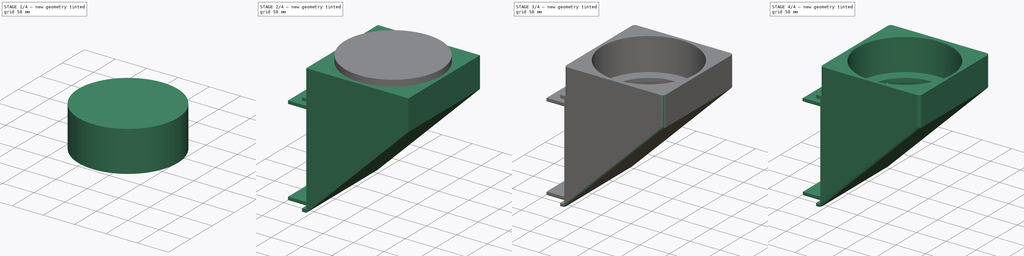
[diagram: build sequence overview — one tinted view per stage of 4, left to right]
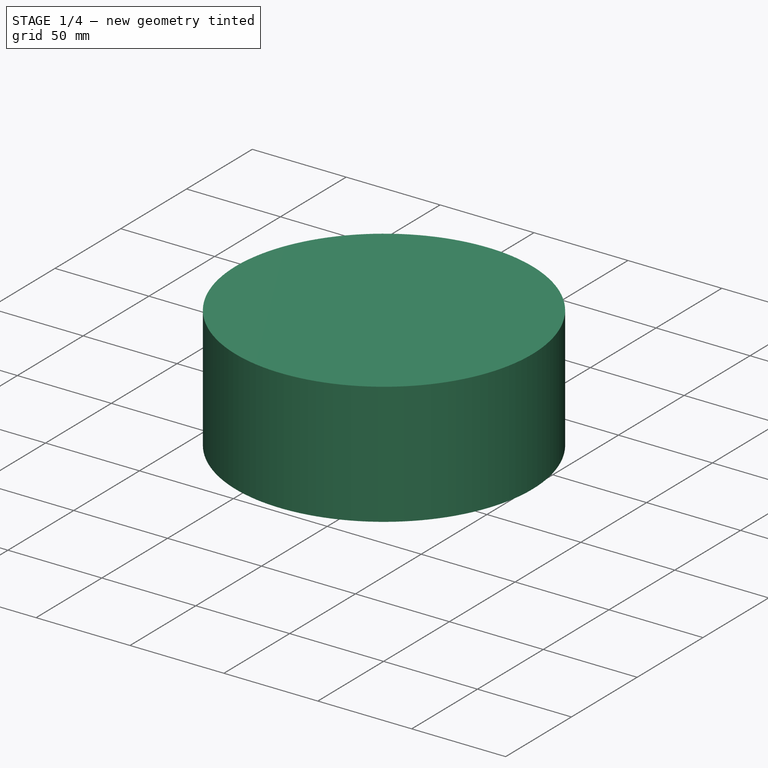
[diagram: stage 1 of 4 — iso view after this stage's code; geometry added in this stage tinted green]
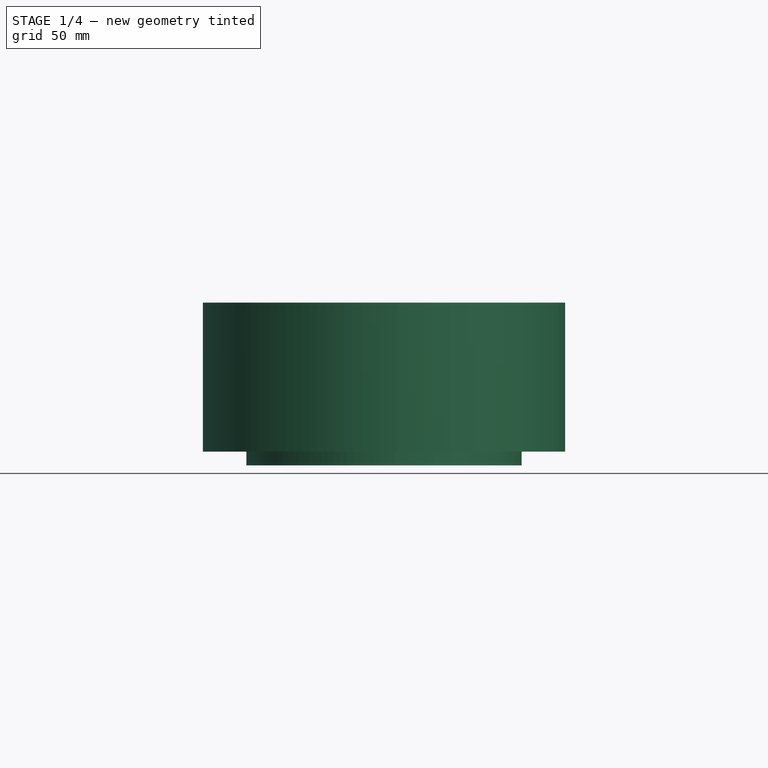
[diagram: stage 1 of 4 — front view after this stage's code; geometry added in this stage tinted green]
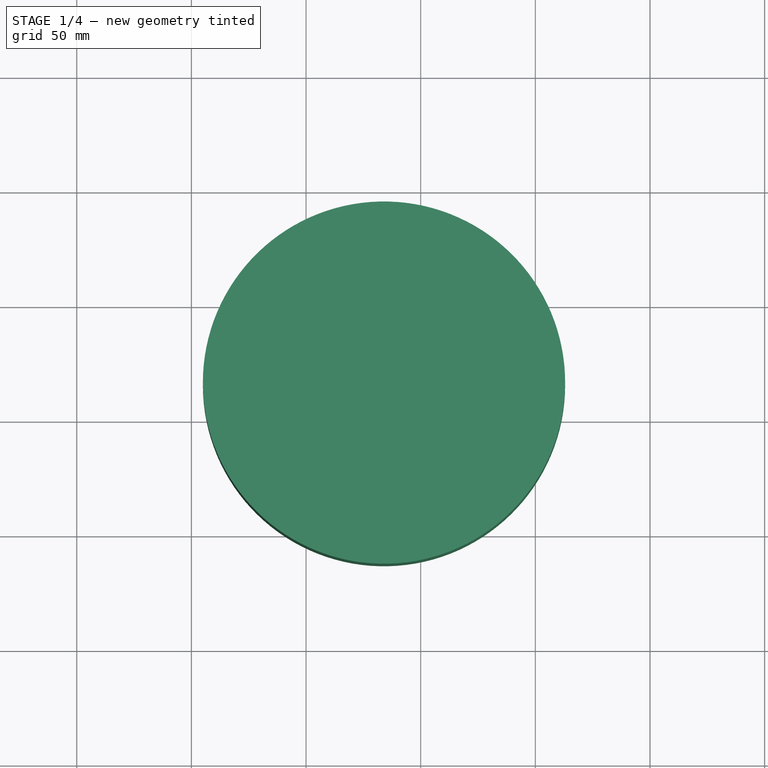
[diagram: stage 1 of 4 — top view after this stage's code; geometry added in this stage tinted green]
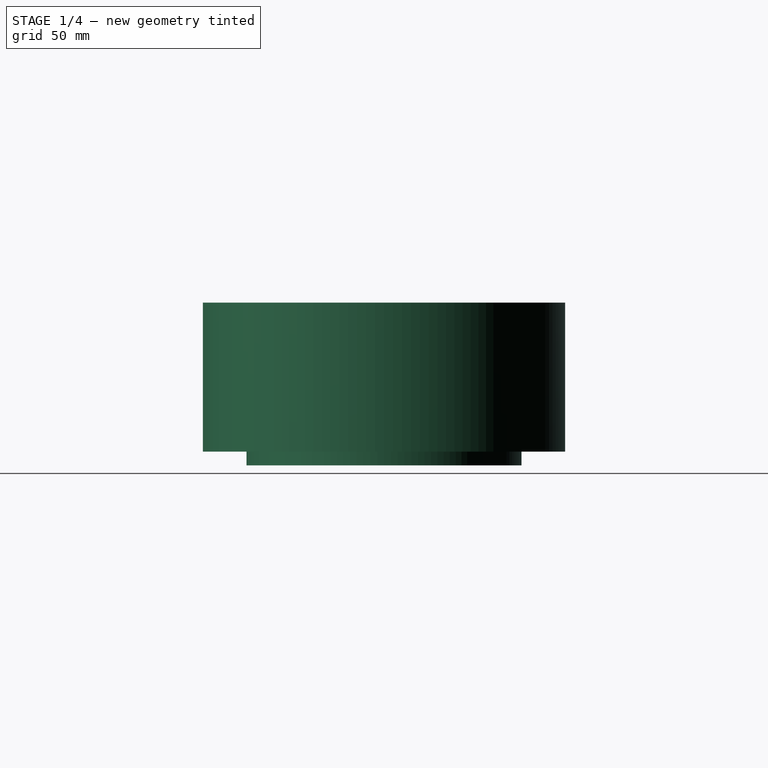
[diagram: stage 1 of 4 — right view after this stage's code; geometry added in this stage tinted green]
FCSTD DOCUMENT  (FreeCAD 1.0R1.0.0)
Label: ACToHose_ColdSide
License: All rights reserved
LicenseURL: http://en.wikipedia.org/wiki/All_rights_reserved
objects: Part::Cut×3, Part::Fillet×3, Sketcher::SketchObject×2, PartDesign::Pad×2, PartDesign::Body×2, Part::Cylinder×2, Spreadsheet::Sheet×1
note: 20 computed .brp shape members not serialized (recipe doc carries the construction recipe); baked Part::Feature solids carry a one-line shape summary decoded from their .brp

FEATURE [Part::Cylinder] Cylinder001
  Angle = 360
  AttacherType = Attacher::AttachEngine3D
  FirstAngle = 0
  Height = 65
  Placement = pos=(84,-84,154) rot=(0,0,1;0rad)
  Radius = 60
  SecondAngle = 0
  expr: .Placement.Base.x = <<ACHoseAdapter>>.hose_od / 2 + <<ACHoseAdapter>>.wallthick
  expr: .Placement.Base.y = -(<<ACHoseAdapter>>.hose_od / 2 + <<ACHoseAdapter>>.wallthick)
  expr: .Placement.Base.z = 160 - 6
  expr: Height = <<ACHoseAdapter>>.hose_pushin + 3 * <<ACHoseAdapter>>.wallthick
  expr: Radius = <<ACHoseAdapter>>.hose_id / 2
FEATURE [Part::Cylinder] Cylinder002
  Angle = 360
  AttacherType = Attacher::AttachEngine3D
  FirstAngle = 0
  Height = 65
  Placement = pos=(84,-84,160) rot=(0,0,1;0rad)
  Radius = 79
  SecondAngle = 0
  expr: .Placement.Base.x = <<ACHoseAdapter>>.hose_od / 2 + <<ACHoseAdapter>>.wallthick
  expr: .Placement.Base.y = -(<<ACHoseAdapter>>.hose_od / 2 + <<ACHoseAdapter>>.wallthick)
  expr: .Placement.Base.z = 160
  expr: Height = <<ACHoseAdapter>>.hose_pushin + 3 * <<ACHoseAdapter>>.wallthick
  expr: Radius = <<ACHoseAdapter>>.hose_od / 2
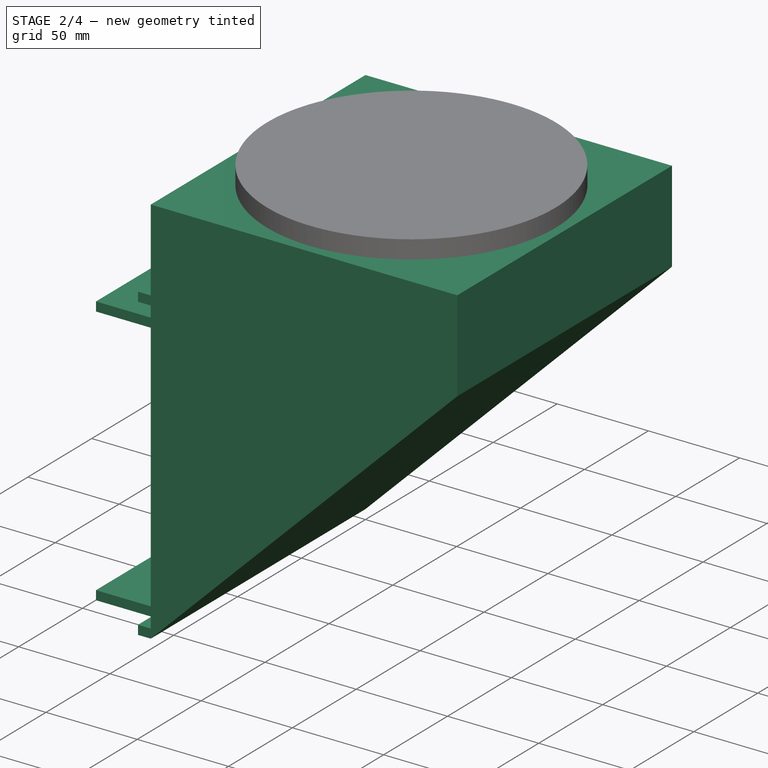
[diagram: stage 2 of 4 — iso view after this stage's code; geometry added in this stage tinted green]
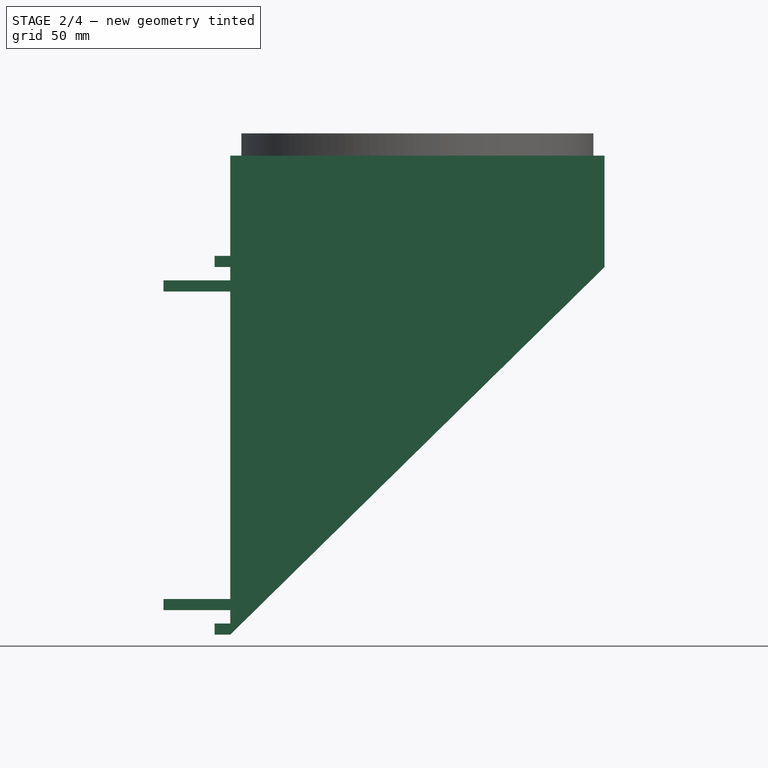
[diagram: stage 2 of 4 — front view after this stage's code; geometry added in this stage tinted green]
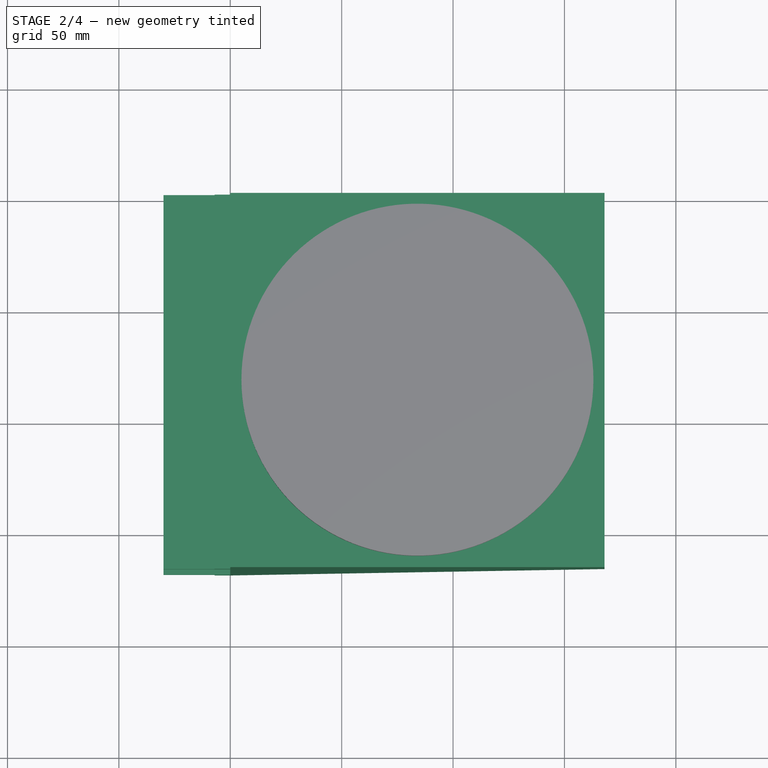
[diagram: stage 2 of 4 — top view after this stage's code; geometry added in this stage tinted green]
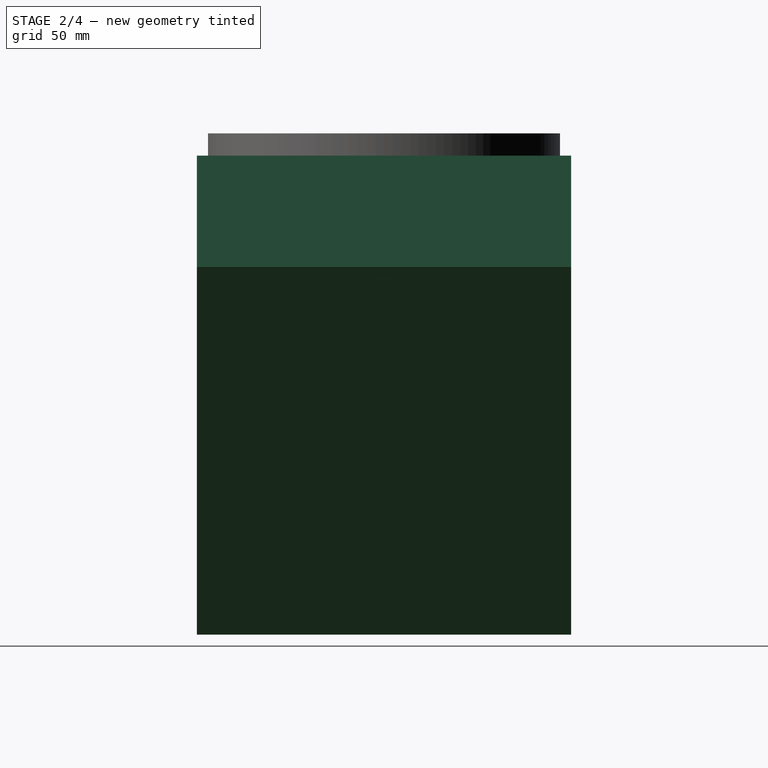
[diagram: stage 2 of 4 — right view after this stage's code; geometry added in this stage tinted green]
FEATURE [Spreadsheet::Sheet] Spreadsheet001  label="ACHoseAdapter"
  cells = A1='Model setting; E1='Calculated properties; A2='Hose OD; B2(hose_od)=158; C2='Outer diameter of the hose; E2='Flow cross section; F2(crosssect_flow)==hose_id / 2 * pi; G2='The cross section for airflow. In optimal case keep constant; A3='Hose ID; B3(hose_id)=120; C3='Used for cross section calculations (Note: Estimated at the moment); A4='Hose push in depth; B4(hose_pushin)=50; C4='How far the hose should be pushed into the adapter; A5='Rect height; B5(rect_height)=160; C5='Inside dimension till "upper" clamp; A6='Wall thickness; B6(wallthick)=5; C6='Wall thickness for outside walls
FEATURE [Sketcher::SketchObject] Sketch
  ArcFitTolerance = 1e-06
  AttachmentSupport = -> [XZ_Plane]
  FullyConstrained = true
  MakeInternals = false
  MapMode = 5
  Placement = pos=(0,0,0) rot=(1,0,0;1.5708rad)
  expr: Constraints[35] = <<ACHoseAdapter>>.rect_height + <<ACHoseAdapter>>.wallthick
  expr: Constraints[38] = <<ACHoseAdapter>>.hose_pushin
  expr: Constraints[39] = <<ACHoseAdapter>>.hose_od + 2 * <<ACHoseAdapter>>.wallthick
  expr: Constraints[43] = <<ACHoseAdapter>>.wallthick
  expr: Constraints[46] = <<ACHoseAdapter>>.wallthick
  expr: Constraints[52] = <<ACHoseAdapter>>.wallthick
  expr: Constraints[55] = <<ACHoseAdapter>>.wallthick
  sketch-geometry (19):
    g0: LineSegment StartX=0 StartY=0 StartZ=0 EndX=168 EndY=165 EndZ=0
    g1: LineSegment StartX=168 StartY=165 StartZ=0 EndX=168 EndY=215 EndZ=0
    g2: LineSegment StartX=168 StartY=215 StartZ=0 EndX=0 EndY=215 EndZ=0
    g3: LineSegment StartX=0 StartY=215 StartZ=0 EndX=0 EndY=170 EndZ=0
    g4: LineSegment StartX=0 StartY=170 StartZ=0 EndX=-7 EndY=170 EndZ=0
    g5: LineSegment StartX=-7 StartY=170 StartZ=0 EndX=-7 EndY=165 EndZ=0
    g6: LineSegment StartX=-7 StartY=165 StartZ=0 EndX=0 EndY=165 EndZ=0
    g7: LineSegment StartX=0 StartY=165 StartZ=0 EndX=0 EndY=159 EndZ=0
    g8: LineSegment StartX=0 StartY=159 StartZ=0 EndX=-30 EndY=159 EndZ=0
    g9: LineSegment StartX=-30 StartY=159 StartZ=0 EndX=-30 EndY=154 EndZ=0
    g10: LineSegment StartX=-30 StartY=154 StartZ=0 EndX=0 EndY=154 EndZ=0
    g11: LineSegment StartX=0 StartY=154 StartZ=0 EndX=0 EndY=16 EndZ=0
    g12: LineSegment StartX=0 StartY=16 StartZ=0 EndX=-30 EndY=16 EndZ=0
    g13: LineSegment StartX=-30 StartY=16 StartZ=0 EndX=-30 EndY=11 EndZ=0
    g14: LineSegment StartX=-30 StartY=11 StartZ=0 EndX=0 EndY=11 EndZ=0
    g15: LineSegment StartX=0 StartY=11 StartZ=0 EndX=0 EndY=5 EndZ=0
    g16: LineSegment StartX=0 StartY=5 StartZ=0 EndX=-7 EndY=5 EndZ=0
    g17: LineSegment StartX=-7 StartY=5 StartZ=0 EndX=-7 EndY=0 EndZ=0
    g18: LineSegment StartX=-7 StartY=0 StartZ=0 EndX=0 EndY=0 EndZ=0
  constraints (56):
    c: Coincident(g-1,g0)
    c: Coincident(g0,g1)
    c: Vertical(g1)
    c: Coincident(g1,g2)
    c: Horizontal(g2)
    c: Coincident(g2,g3)
    c: Vertical(g3)
    c: Coincident(g3,g4)
    c: Horizontal(g4)
    c: Coincident(g4,g5)
    c: Vertical(g5)
    c: Coincident(g5,g6)
    c: Horizontal(g6)
    c: Coincident(g6,g7)
    c: Coincident(g7,g8)
    c: Coincident(g8,g9)
    c: Vertical(g9)
    c: Coincident(g9,g10)
    c: Horizontal(g10)
    c: Coincident(g10,g11)
    c: Vertical(g11)
    c: Coincident(g11,g12)
    c: Horizontal(g12)
    c: Coincident(g12,g13)
    c: Vertical(g13)
    c: Coincident(g13,g14)
    c: Horizontal(g14)
    c: Coincident(g14,g15)
    c: Coincident(g15,g16)
    c: Horizontal(g16)
    c: Coincident(g16,g17)
    c: PointOnObject(g17,g-1)
    c: Vertical(g17)
    c: Coincident(g17,g18)
    c: Coincident(g18,g0)
    c: DistanceY(g0,g0) = 165
    c: Horizontal(g8)
    c: Vertical(g7)
    c: DistanceY(g1,g1) = 50
    c: DistanceX(g0,g1) = 168
    c: DistanceX(g18,g18) = 7
    c: DistanceX(g2,g0) = 0
    c: DistanceX(g4,g4) = 7
    c: DistanceY(g5,g5) = 5
    c: DistanceX(g8,g8) = 30
    c: DistanceX(g2,g6) = 0
    c: DistanceY(g9,g9) = 5
    c: DistanceY(g7,g6) = 6
    c: Vertical(g15)
    c: DistanceX(g15,g0) = 0
    c: DistanceX(g0,g11) = 0
    c: DistanceY(g15,g14) = 6
    c: DistanceY(g13,g13) = 5
    c: Vertical(g13,g8)
    c: DistanceY(g13,g8) = 148
    c: DistanceY(g17,g17) = 5
FEATURE [PartDesign::Pad] Pad
  Direction = (0,-1,2e-16)
  Length = 168
  Length2 = 10
  Placement = pos=(0,0,0) rot=(1,0,0;1.5708rad)
  Profile = -> Sketch
  ReferenceAxis = -> Sketch [N_Axis]
  Suppressed = false
  Type = 0
  expr: Length = <<ACHoseAdapter>>.hose_od + 2 * <<ACHoseAdapter>>.wallthick
FEATURE [PartDesign::Body] Body
  AllowCompound = false
  Group = -> [Sketch,Pad]
  Origin = -> Origin
  Tip = -> Pad
FEATURE [Sketcher::SketchObject] Sketch003
  ArcFitTolerance = 1e-06
  FullyConstrained = true
  MakeInternals = false
  MapMode = 5
  Placement = pos=(0,-168,3.73e-14) rot=(1,0,0;1.5708rad)
  expr: Constraints[5] = 148 - 2 * <<ACHoseAdapter>>.wallthick
  expr: Constraints[6] = <<ACHoseAdapter>>.wallthick * 2 + 6
  expr: Constraints[8] = <<ACHoseAdapter>>.wallthick + <<ACHoseAdapter>>.hose_od - (<<ACHoseAdapter>>.hose_od + 2 * <<ACHoseAdapter>>.wallthick) * (2 * <<ACHoseAdapter>>.wallthick + 6) / 160
  sketch-geometry (3):
    g0: LineSegment StartX=0 StartY=16 StartZ=0 EndX=146.2 EndY=154 EndZ=0
    g1: LineSegment StartX=146.2 StartY=154 StartZ=0 EndX=0 EndY=154 EndZ=0
    g2: LineSegment StartX=0 StartY=154 StartZ=0 EndX=0 EndY=16 EndZ=0
  constraints (9):
    c: PointOnObject(g0,g-2)
    c: Coincident(g0,g1)
    c: Coincident(g1,g2)
    c: Coincident(g2,g0)
    c: Vertical(g2)
    c: DistanceY(g2,g2) = 138
    c: DistanceY(g-1,g0) = 16
    c: Horizontal(g1)
    c: DistanceX(g1,g1) = 146.2
FEATURE [PartDesign::Pad] Pad001
  Direction = (0,1,0)
  Length = 158
  Length2 = 10
  Placement = pos=(0,-168,3.73e-14) rot=(1,0,0;1.5708rad)
  Profile = -> Sketch003
  ReferenceAxis = -> Sketch003 [N_Axis]
  Suppressed = false
  Type = 0
  UseCustomVector = true
  expr: Length = <<ACHoseAdapter>>.hose_od
FEATURE [PartDesign::Body] Body001
  AllowCompound = false
  Group = -> [Sketch003,Pad001]
  Origin = -> Origin001
  Placement = pos=(0,5,0) rot=(0,0,1;0rad)
  Tip = -> Pad001
  expr: .Placement.Base.y = <<ACHoseAdapter>>.wallthick
FEATURE [Part::Cut] Cut
  Base = -> Body
  Tool = -> Body001
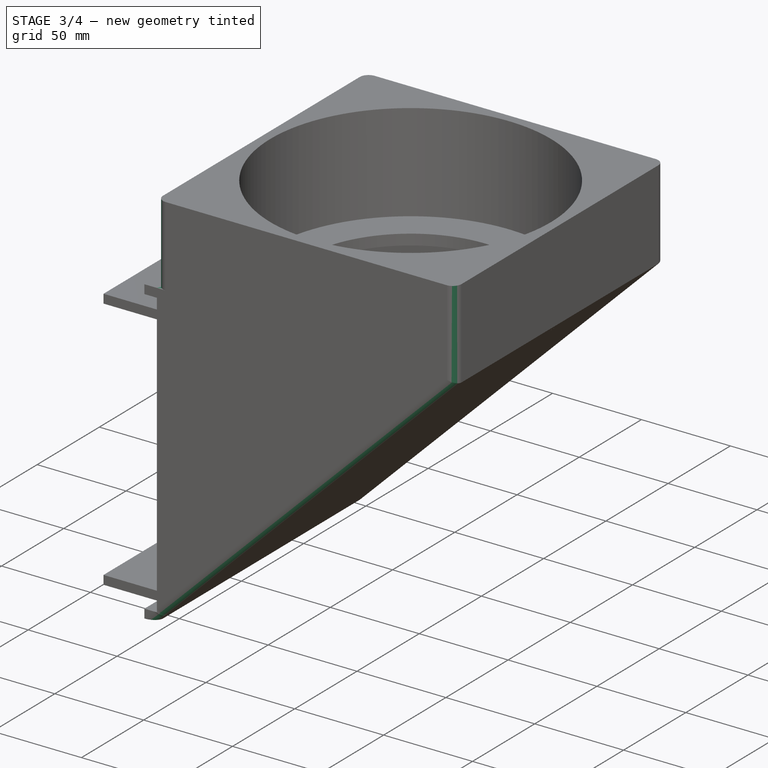
[diagram: stage 3 of 4 — iso view after this stage's code; geometry added in this stage tinted green]
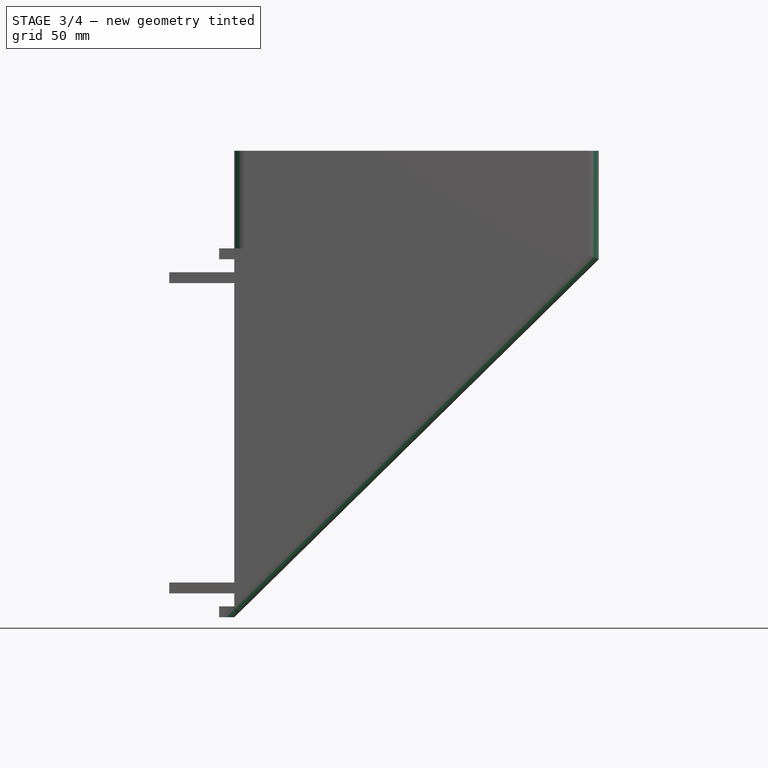
[diagram: stage 3 of 4 — front view after this stage's code; geometry added in this stage tinted green]
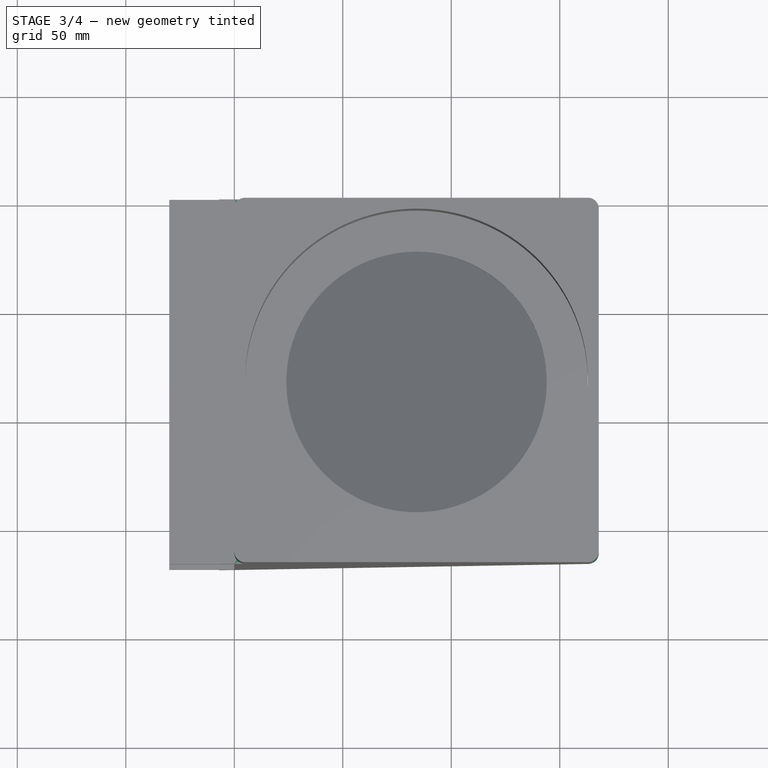
[diagram: stage 3 of 4 — top view after this stage's code; geometry added in this stage tinted green]
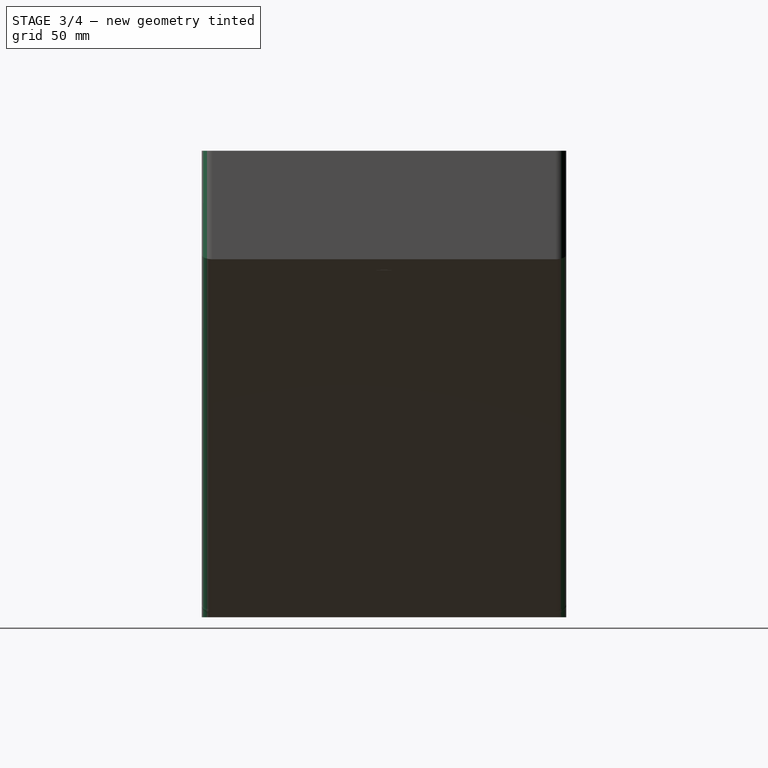
[diagram: stage 3 of 4 — right view after this stage's code; geometry added in this stage tinted green]
FEATURE [Part::Cut] Cut001
  Base = -> Cut
  Tool = -> Cylinder001
FEATURE [Part::Cut] Cut002
  Base = -> Cut001
  Tool = -> Cylinder002
FEATURE [Part::Fillet] Fillet
  Base = -> Cut002
  EdgeLinks = -> Cut002 [Edge2,Edge3,Edge11,Edge13,Edge28,Edge30]
  Edges = 6 edges r=5: [Edge2,Edge3,Edge11,Edge13,Edge28,Edge30]
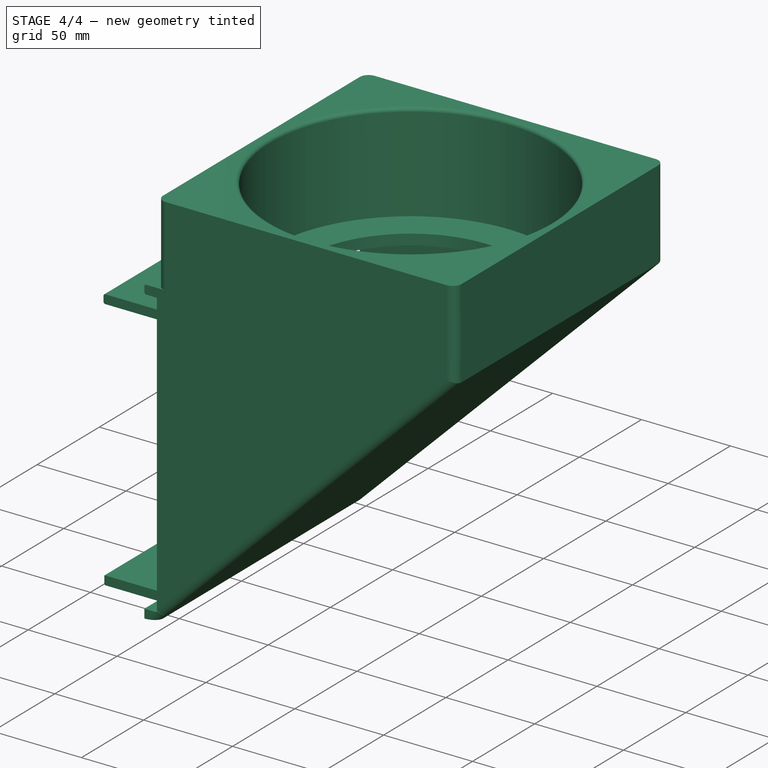
[diagram: stage 4 of 4 — iso view after this stage's code; geometry added in this stage tinted green]
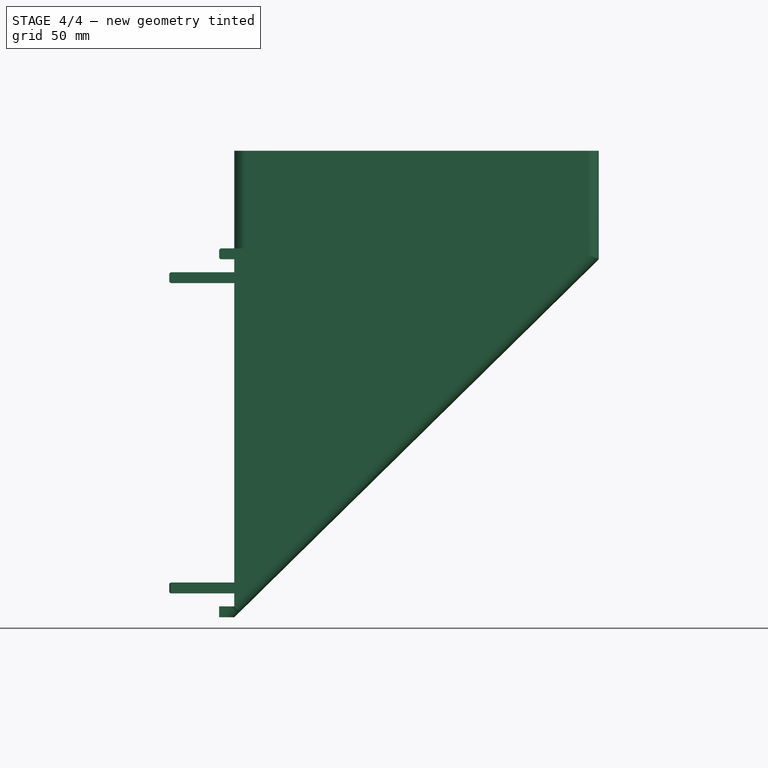
[diagram: stage 4 of 4 — front view after this stage's code; geometry added in this stage tinted green]
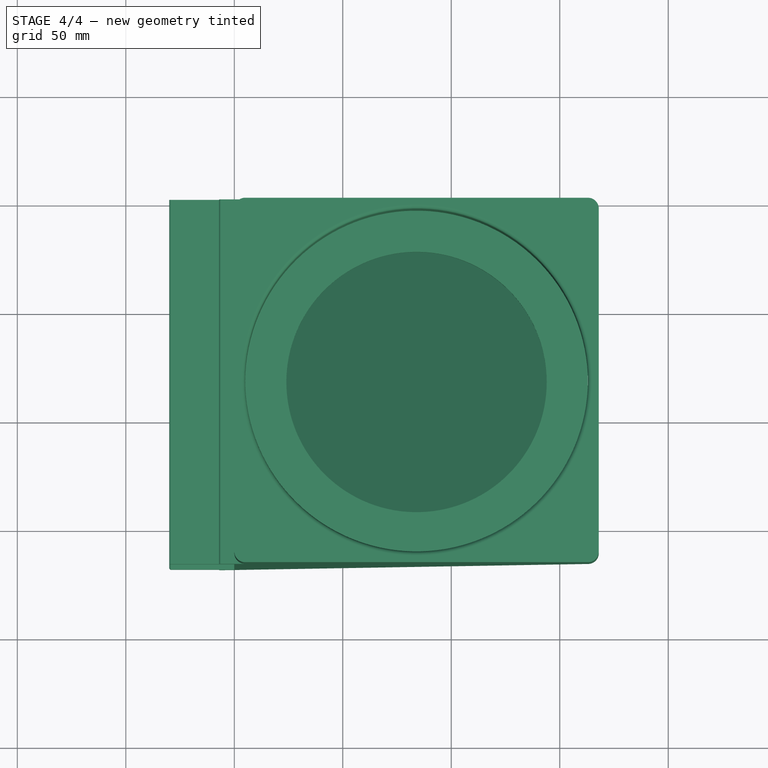
[diagram: stage 4 of 4 — top view after this stage's code; geometry added in this stage tinted green]
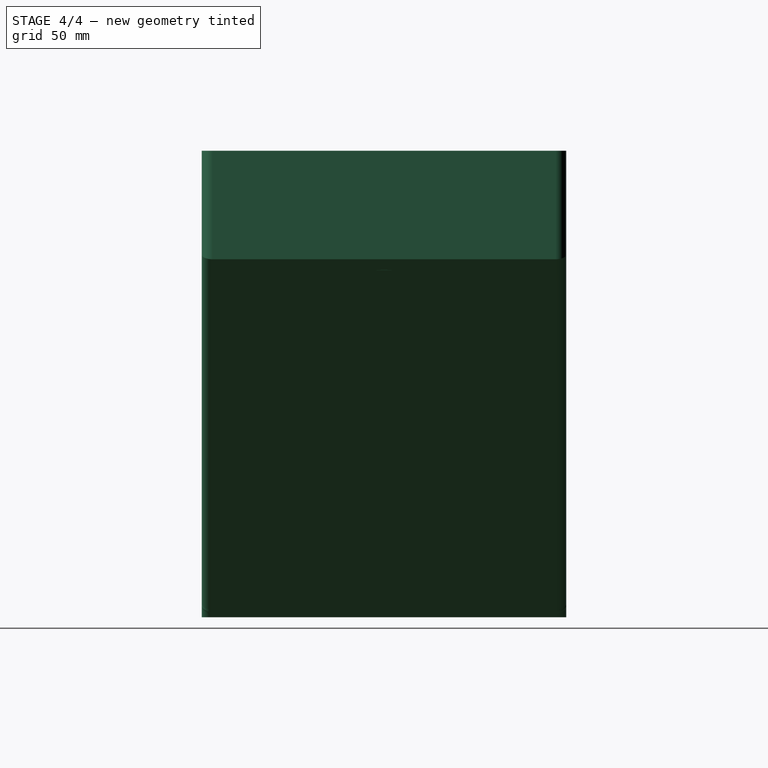
[diagram: stage 4 of 4 — right view after this stage's code; geometry added in this stage tinted green]
FEATURE [Part::Fillet] Fillet001
  Base = -> Fillet
  EdgeLinks = -> Fillet [Edge58,Edge74,Edge88,Edge93,Edge94,Edge95,Edge103,Edge104]
  Edges = 8 edges r=1: [Edge58,Edge74,Edge88,Edge93,Edge94,Edge95,Edge103,Edge104]
FEATURE [Part::Fillet] Fillet002
  Base = -> Fillet001
  EdgeLinks = -> Fillet001 [Edge42]
  Edges = 1 edges r=2: [Edge42]
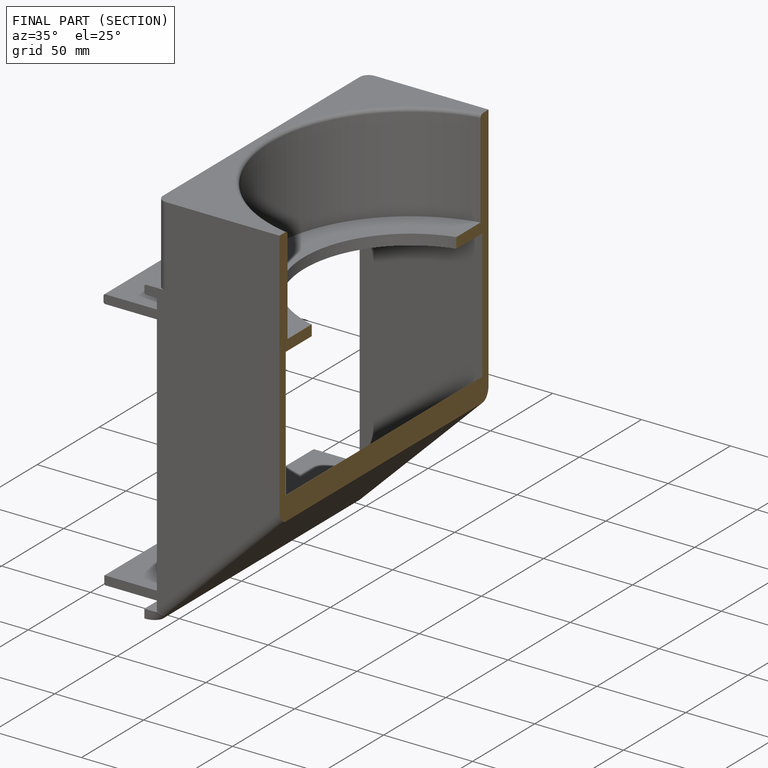
[diagram: finished part — half-section view (interior)]
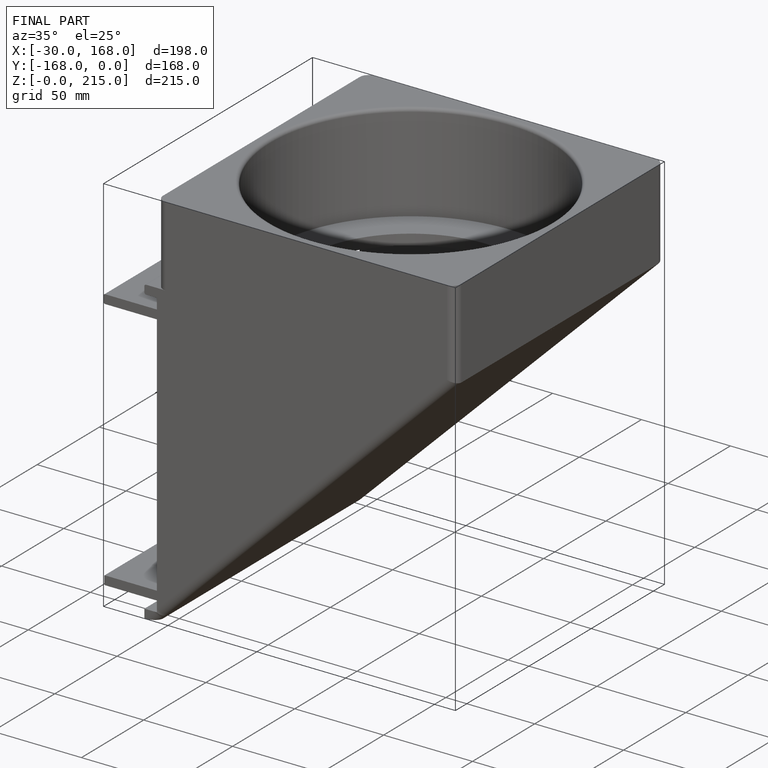
[diagram: finished part — iso view with bounding-box wireframe]
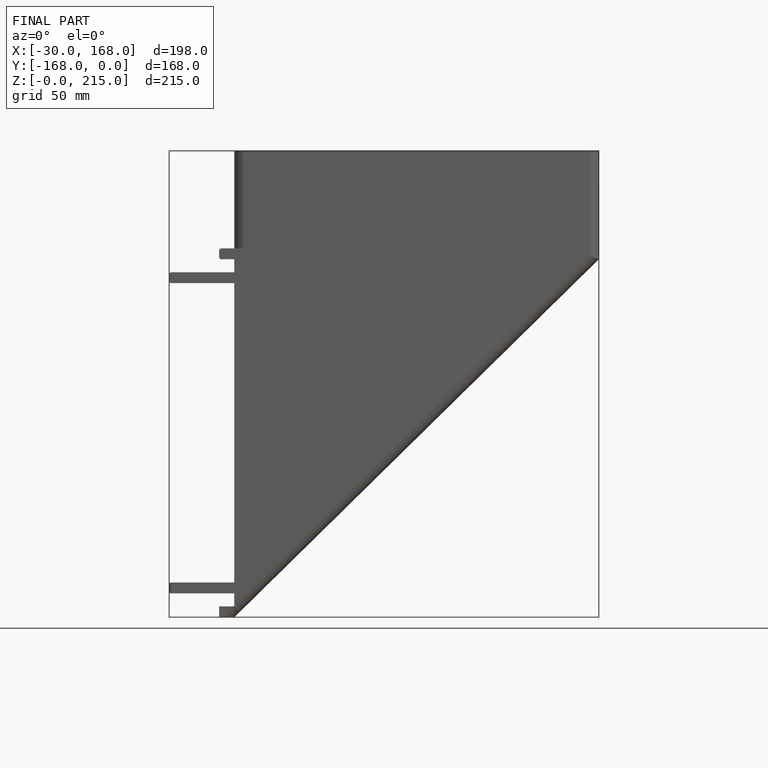
[diagram: finished part — front view with bounding-box wireframe]
